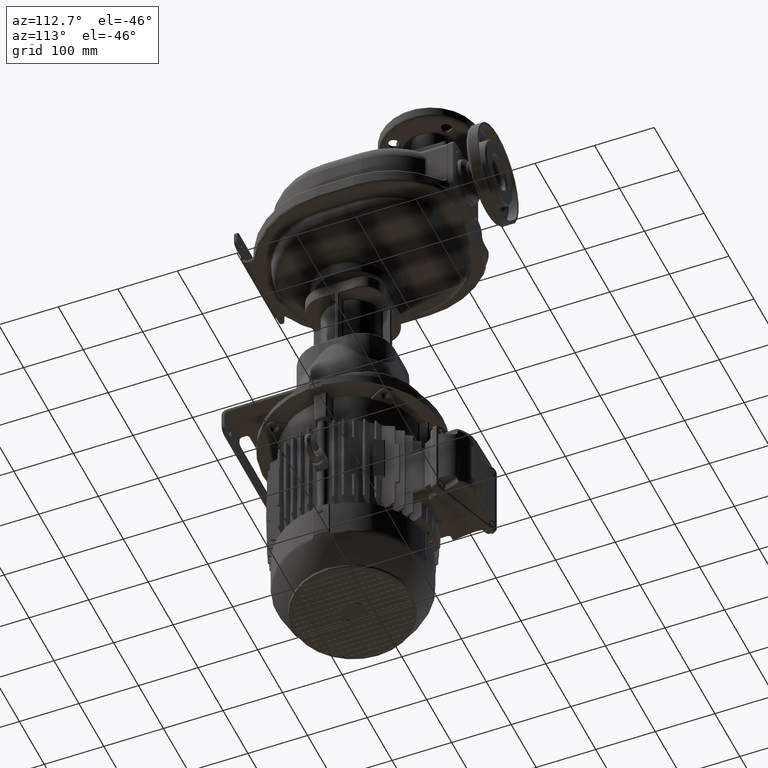
[diagram: clean part render]
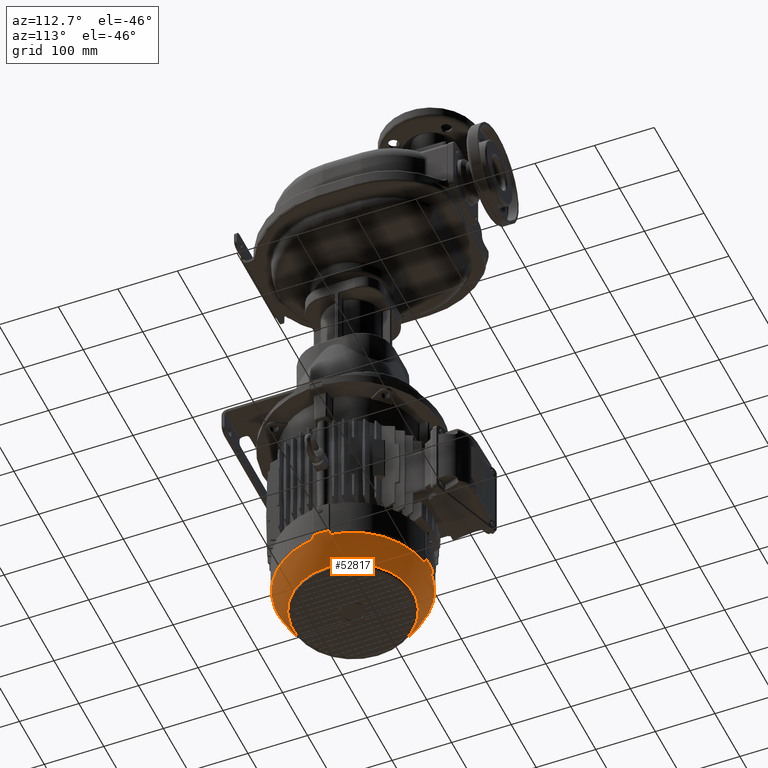
[diagram: same view with one face highlighted and labeled with its STEP entity id]
A machine part, auxiliary view. The second image highlights one B-rep face of the part: STEP entity #52817.
In plain terms, the highlighted spherical surface has radius 134.5 mm.
Its self-contained STEP definition (entity closure, byte-faithful):
#2063=CARTESIAN_POINT('',(1.488929890107E1,3.430784874219E1,-7.596978132399E2));
#2064=CARTESIAN_POINT('',(1.475744398687E1,3.414301324560E1,-7.592855881058E2));
#2065=CARTESIAN_POINT('',(1.451295154980E1,3.383627824537E1,-7.585040568826E2));
#2066=CARTESIAN_POINT('',(1.420577959763E1,3.344362143389E1,-7.574703323235E2));
#2067=CARTESIAN_POINT('',(1.395264247823E1,3.310607330589E1,-7.565533788171E2));
#2068=CARTESIAN_POINT('',(1.374870614997E1,3.281837287506E1,-7.557486281813E2));
#2069=CARTESIAN_POINT('',(1.358554285313E1,3.257041140621E1,-7.550358744280E2));
#2070=CARTESIAN_POINT('',(1.345342433632E1,3.235046135687E1,-7.543871514261E2));
#2071=CARTESIAN_POINT('',(1.334630162937E1,3.215116405452E1,-7.537845735321E2));
#2072=CARTESIAN_POINT('',(1.328896024811E1,3.202881445491E1,-7.534055431274E2));
#2073=CARTESIAN_POINT('',(1.326363396699E1,3.197039553464E1,-7.532224832490E2));
#2075=CARTESIAN_POINT('',(-2.912393634391E-14,1.6E2,-7.596978132152E2));
#2076=DIRECTION('',(0.E0,0.E0,-1.E0));
#2077=DIRECTION('',(9.930567840818E-1,-1.176359791440E-1,0.E0));
#2078=AXIS2_PLACEMENT_3D('',#2075,#2076,#2077);
#2080=CARTESIAN_POINT('',(1.280296044654E2,1.467363660330E2,-7.532224832490E2));
#2081=CARTESIAN_POINT('',(1.279814259862E2,1.467154792777E2,-7.533734539704E2));
#2082=CARTESIAN_POINT('',(1.278804561665E2,1.466687816741E2,-7.536868830440E2));
#2083=CARTESIAN_POINT('',(1.277159433322E2,1.465831072865E2,-7.541873143992E2));
#2084=CARTESIAN_POINT('',(1.275340395683E2,1.464783187419E2,-7.547291821856E2));
#2085=CARTESIAN_POINT('',(1.273289078842E2,1.463493974896E2,-7.553269317108E2));
#2086=CARTESIAN_POINT('',(1.270920268915E2,1.461888759900E2,-7.560010920150E2));
#2087=CARTESIAN_POINT('',(1.268166684840E2,1.459901996840E2,-7.567650147340E2));
#2088=CARTESIAN_POINT('',(1.264980841619E2,1.457490369051E2,-7.576251160253E2));
#2089=CARTESIAN_POINT('',(1.261299124284E2,1.454600614483E2,-7.585906456357E2));
#2090=CARTESIAN_POINT('',(1.258448223032E2,1.452328124912E2,-7.593160050594E2));
#2091=CARTESIAN_POINT('',(1.256921512578E2,1.451107010989E2,-7.596978132399E2));
#2093=CARTESIAN_POINT('',(-2.823160288411E-14,1.6E2,-7.524111169065E2));
#2094=DIRECTION('',(0.E0,0.E0,-1.E0));
#2095=DIRECTION('',(9.947688696105E-1,1.021513389720E-1,0.E0));
#2096=AXIS2_PLACEMENT_3D('',#2093,#2094,#2095);
#2098=CARTESIAN_POINT('',(1.256921512578E2,1.748892989011E2,-7.596978132399E2));
#2099=CARTESIAN_POINT('',(1.258448223029E2,1.747671875089E2,-7.593160050601E2));
#2100=CARTESIAN_POINT('',(1.261299124348E2,1.745399385469E2,-7.585906456189E2));
#2101=CARTESIAN_POINT('',(1.264980841584E2,1.742509630972E2,-7.576251160357E2));
#2102=CARTESIAN_POINT('',(1.268166685736E2,1.740098002482E2,-7.567650144918E2));
#2103=CARTESIAN_POINT('',(1.270920271019E2,1.738111238598E2,-7.560010914282E2));
#2104=CARTESIAN_POINT('',(1.273289082360E2,1.736506022791E2,-7.553269306993E2));
#2105=CARTESIAN_POINT('',(1.275340398416E2,1.735216810947E2,-7.547291813784E2));
#2106=CARTESIAN_POINT('',(1.277159434989E2,1.734168926232E2,-7.541873138958E2));
#2107=CARTESIAN_POINT('',(1.278804562363E2,1.733312182911E2,-7.536868828285E2));
#2108=CARTESIAN_POINT('',(1.279814260074E2,1.732845207133E2,-7.533734539039E2));
#2109=CARTESIAN_POINT('',(1.280296044654E2,1.732636339670E2,-7.532224832490E2));
#2111=CARTESIAN_POINT('',(-2.912393634391E-14,1.6E2,-7.596978132152E2));
#2112=DIRECTION('',(0.E0,0.E0,-1.E0));
#2113=DIRECTION('',(1.176359791440E-1,9.930567840818E-1,0.E0));
#2114=AXIS2_PLACEMENT_3D('',#2111,#2112,#2113);
#2116=CARTESIAN_POINT('',(1.326363396699E1,2.880296044654E2,-7.532224832490E2));
#2117=CARTESIAN_POINT('',(1.328896024201E1,2.879711855585E2,-7.534055430854E2));
#2118=CARTESIAN_POINT('',(1.334630160739E1,2.878488359941E2,-7.537845733820E2));
#2119=CARTESIAN_POINT('',(1.345342429007E1,2.876495387281E2,-7.543871511699E2));
#2120=CARTESIAN_POINT('',(1.358554270898E1,2.874295888267E2,-7.550358737463E2));
#2121=CARTESIAN_POINT('',(1.374870594658E1,2.871816274199E2,-7.557486273469E2));
#2122=CARTESIAN_POINT('',(1.395264235194E1,2.868939268641E2,-7.565533783521E2));
#2123=CARTESIAN_POINT('',(1.420577955146E1,2.865563786239E2,-7.574703321737E2));
#2124=CARTESIAN_POINT('',(1.451295163325E1,2.861637216498E2,-7.585040571556E2));
#2125=CARTESIAN_POINT('',(1.475744402723E1,2.858569867015E2,-7.592855882388E2));
#2126=CARTESIAN_POINT('',(1.488929890107E1,2.856921512578E2,-7.596978132399E2));
#2128=CARTESIAN_POINT('',(-2.823160288411E-14,1.6E2,-7.524111169065E2));
#2129=DIRECTION('',(0.E0,0.E0,1.E0));
#2130=DIRECTION('',(1.021513389720E-1,9.947688696105E-1,0.E0));
#2131=AXIS2_PLACEMENT_3D('',#2128,#2129,#2130);
#2133=CARTESIAN_POINT('',(-1.488929890107E1,2.856921512578E2,
-7.596978132399E2));
#2134=CARTESIAN_POINT('',(-1.475744398669E1,2.858569867545E2,
-7.592855881055E2));
#2135=CARTESIAN_POINT('',(-1.451295154937E1,2.861637217549E2,
-7.585040568820E2));
#2136=CARTESIAN_POINT('',(-1.420577959726E1,2.865563785665E2,
-7.574703323226E2));
#2137=CARTESIAN_POINT('',(-1.395264247797E1,2.868939266945E2,
-7.565533788161E2));
#2138=CARTESIAN_POINT('',(-1.374870614973E1,2.871816271254E2,
-7.557486281801E2));
#2139=CARTESIAN_POINT('',(-1.358554285288E1,2.874295885943E2,
-7.550358744266E2));
#2140=CARTESIAN_POINT('',(-1.345342433612E1,2.876495386435E2,
-7.543871514250E2));
#2141=CARTESIAN_POINT('',(-1.334630162928E1,2.878488359457E2,
-7.537845735314E2));
#2142=CARTESIAN_POINT('',(-1.328896024808E1,2.879711855452E2,
-7.534055431272E2));
#2143=CARTESIAN_POINT('',(-1.326363396699E1,2.880296044654E2,
-7.532224832490E2));
#2145=CARTESIAN_POINT('',(-2.912393634391E-14,1.6E2,-7.596978132152E2));
#2146=DIRECTION('',(0.E0,0.E0,-1.E0));
#2147=DIRECTION('',(-9.930567840818E-1,1.176359791440E-1,0.E0));
#2148=AXIS2_PLACEMENT_3D('',#2145,#2146,#2147);
#2150=CARTESIAN_POINT('',(-1.280296044654E2,1.732636339670E2,
-7.532224832490E2));
#2151=CARTESIAN_POINT('',(-1.279814259862E2,1.732845207223E2,
-7.533734539704E2));
#2152=CARTESIAN_POINT('',(-1.278804561665E2,1.733312183259E2,
-7.536868830440E2));
#2153=CARTESIAN_POINT('',(-1.277159433322E2,1.734168927135E2,
-7.541873143991E2));
#2154=CARTESIAN_POINT('',(-1.275340395683E2,1.735216812581E2,
-7.547291821856E2));
#2155=CARTESIAN_POINT('',(-1.273289078842E2,1.736506025104E2,
-7.553269317108E2));
#2156=CARTESIAN_POINT('',(-1.270920268915E2,1.738111240100E2,
-7.560010920150E2));
#2157=CARTESIAN_POINT('',(-1.268166684840E2,1.740098003160E2,
-7.567650147339E2));
#2158=CARTESIAN_POINT('',(-1.264980841620E2,1.742509630949E2,
-7.576251160253E2));
#2159=CARTESIAN_POINT('',(-1.261299124284E2,1.745399385517E2,
-7.585906456357E2));
#2160=CARTESIAN_POINT('',(-1.258448223032E2,1.747671875088E2,
-7.593160050594E2));
#2161=CARTESIAN_POINT('',(-1.256921512578E2,1.748892989011E2,
-7.596978132399E2));
#2163=CARTESIAN_POINT('',(-2.823160288411E-14,1.6E2,-7.524111169065E2));
#2164=DIRECTION('',(0.E0,0.E0,-1.E0));
#2165=DIRECTION('',(-9.947688696105E-1,-1.021513389720E-1,0.E0));
#2166=AXIS2_PLACEMENT_3D('',#2163,#2164,#2165);
#2168=CARTESIAN_POINT('',(-1.256921512578E2,1.451107010989E2,
-7.596978132399E2));
#2169=CARTESIAN_POINT('',(-1.258448223029E2,1.452328124912E2,
-7.593160050600E2));
#2170=CARTESIAN_POINT('',(-1.261299124349E2,1.454600614534E2,
-7.585906456186E2));
#2171=CARTESIAN_POINT('',(-1.264980841586E2,1.457490369030E2,
-7.576251160352E2));
#2172=CARTESIAN_POINT('',(-1.268166685737E2,1.459901997519E2,
-7.567650144914E2));
#2173=CARTESIAN_POINT('',(-1.270920271020E2,1.461888761403E2,
-7.560010914279E2));
#2174=CARTESIAN_POINT('',(-1.273289082361E2,1.463493977209E2,
-7.553269306989E2));
#2175=CARTESIAN_POINT('',(-1.275340398418E2,1.464783189054E2,
-7.547291813778E2));
#2176=CARTESIAN_POINT('',(-1.277159434990E2,1.465831073769E2,
-7.541873138953E2));
#2177=CARTESIAN_POINT('',(-1.278804562364E2,1.466687817089E2,
-7.536868828282E2));
#2178=CARTESIAN_POINT('',(-1.279814260075E2,1.467154792867E2,
-7.533734539038E2));
#2179=CARTESIAN_POINT('',(-1.280296044654E2,1.467363660330E2,
-7.532224832490E2));
#2181=CARTESIAN_POINT('',(-2.912393634391E-14,1.6E2,-7.596978132152E2));
#2182=DIRECTION('',(0.E0,0.E0,-1.E0));
#2183=DIRECTION('',(-1.176359791440E-1,-9.930567840818E-1,0.E0));
#2184=AXIS2_PLACEMENT_3D('',#2181,#2182,#2183);
#2186=CARTESIAN_POINT('',(-1.326363396699E1,3.197039553464E1,
-7.532224832490E2));
#2187=CARTESIAN_POINT('',(-1.328896024202E1,3.202881444149E1,
-7.534055430855E2));
#2188=CARTESIAN_POINT('',(-1.334630160742E1,3.215116400598E1,
-7.537845733822E2));
#2189=CARTESIAN_POINT('',(-1.345342429014E1,3.235046127200E1,
-7.543871511704E2));
#2190=CARTESIAN_POINT('',(-1.358554270907E1,3.257041117345E1,
-7.550358737468E2));
#2191=CARTESIAN_POINT('',(-1.374870594667E1,3.281837258026E1,
-7.557486273473E2));
#2192=CARTESIAN_POINT('',(-1.395264235203E1,3.310607313600E1,
-7.565533783525E2));
#2193=CARTESIAN_POINT('',(-1.420577955160E1,3.344362137626E1,
-7.574703321740E2));
#2194=CARTESIAN_POINT('',(-1.451295163341E1,3.383627835028E1,
-7.585040571558E2));
#2195=CARTESIAN_POINT('',(-1.475744402729E1,3.414301329857E1,
-7.592855882389E2));
#2196=CARTESIAN_POINT('',(-1.488929890107E1,3.430784874219E1,
-7.596978132399E2));
#2198=CARTESIAN_POINT('',(-3.439562241373E-14,1.6E2,-8.027458184241E2));
#2199=DIRECTION('',(0.E0,0.E0,-1.E0));
#2200=DIRECTION('',(-1.E0,0.E0,0.E0));
#2201=AXIS2_PLACEMENT_3D('',#2198,#2199,#2200);
#2203=CARTESIAN_POINT('',(-3.439562241373E-14,1.6E2,-8.027458184241E2));
#2204=DIRECTION('',(0.E0,0.E0,-1.E0));
#2205=DIRECTION('',(1.E0,0.E0,0.E0));
#2206=AXIS2_PLACEMENT_3D('',#2203,#2204,#2205);
#2208=CARTESIAN_POINT('',(-2.823160288411E-14,1.6E2,-7.524111169065E2));
#2209=DIRECTION('',(0.E0,0.E0,-1.E0));
#2210=DIRECTION('',(1.021513389720E-1,-9.947688696105E-1,0.E0));
#2211=AXIS2_PLACEMENT_3D('',#2208,#2209,#2210);
#2240=CARTESIAN_POINT('',(1.317323333080E1,3.171658676751E1,-7.524111169065E2));
#2587=CARTESIAN_POINT('',(-1.282834132325E2,1.468267666692E2,
-7.524111169065E2));
#2588=CARTESIAN_POINT('',(-1.282002467554E2,1.468032779781E2,
-7.526822287057E2));
#2589=CARTESIAN_POINT('',(-1.281156932223E2,1.467736879886E2,
-7.529527179535E2));
#2590=CARTESIAN_POINT('',(-1.280296044654E2,1.467363660330E2,
-7.532224832490E2));
#2602=CARTESIAN_POINT('',(-1.280296044654E2,1.467363660330E2,
-7.532224832490E2));
#2628=CARTESIAN_POINT('',(-1.488929890107E1,3.430784874219E1,
-7.596978132399E2));
#2646=CARTESIAN_POINT('',(-1.256921512578E2,1.451107010989E2,
-7.596978132399E2));
#2669=CARTESIAN_POINT('',(-1.326363396699E1,3.197039553464E1,
-7.532224832490E2));
#2670=CARTESIAN_POINT('',(-1.322631201143E1,3.188430677767E1,
-7.529527179535E2));
#2671=CARTESIAN_POINT('',(-1.319672202193E1,3.179975324463E1,
-7.526822287057E2));
#2672=CARTESIAN_POINT('',(-1.317323333080E1,3.171658676751E1,
-7.524111169065E2));
#2738=CARTESIAN_POINT('',(-1.282834132325E2,1.468267666692E2,
-7.524111169065E2));
#2756=CARTESIAN_POINT('',(-1.282834132325E2,1.731732333308E2,
-7.524111169065E2));
#2842=CARTESIAN_POINT('',(-1.280296044654E2,1.732636339670E2,
-7.532224832490E2));
#2843=CARTESIAN_POINT('',(-1.281156932223E2,1.732263120114E2,
-7.529527179535E2));
#2844=CARTESIAN_POINT('',(-1.282002467554E2,1.731967220219E2,
-7.526822287057E2));
#2845=CARTESIAN_POINT('',(-1.282834132325E2,1.731732333308E2,
-7.524111169065E2));
#2851=CARTESIAN_POINT('',(-1.280296044654E2,1.732636339670E2,
-7.532224832490E2));
#2887=CARTESIAN_POINT('',(-1.256921512578E2,1.748892989011E2,
-7.596978132399E2));
#2909=CARTESIAN_POINT('',(-1.488929890107E1,2.856921512578E2,
-7.596978132399E2));
#2920=CARTESIAN_POINT('',(-1.326363396699E1,2.880296044654E2,
-7.532224832490E2));
#2922=CARTESIAN_POINT('',(-1.317323333080E1,2.882834132325E2,
-7.524111169065E2));
#2923=CARTESIAN_POINT('',(-1.319672202193E1,2.882002467554E2,
-7.526822287057E2));
#2924=CARTESIAN_POINT('',(-1.322631201143E1,2.881156932223E2,
-7.529527179535E2));
#2925=CARTESIAN_POINT('',(-1.326363396699E1,2.880296044654E2,
-7.532224832490E2));
#2931=CARTESIAN_POINT('',(-1.317323333080E1,2.882834132325E2,
-7.524111169065E2));
#2989=CARTESIAN_POINT('',(1.317323333080E1,2.882834132325E2,-7.524111169065E2));
#3601=CARTESIAN_POINT('',(1.326363396699E1,2.880296044654E2,-7.532224832490E2));
#3602=CARTESIAN_POINT('',(1.322631201143E1,2.881156932223E2,-7.529527179535E2));
#3603=CARTESIAN_POINT('',(1.319672202193E1,2.882002467554E2,-7.526822287057E2));
#3604=CARTESIAN_POINT('',(1.317323333080E1,2.882834132325E2,-7.524111169065E2));
#3610=CARTESIAN_POINT('',(1.326363396699E1,2.880296044654E2,-7.532224832490E2));
#3617=CARTESIAN_POINT('',(1.488929890107E1,2.856921512578E2,-7.596978132399E2));
#3654=CARTESIAN_POINT('',(1.256921512578E2,1.748892989011E2,-7.596978132399E2));
#3677=CARTESIAN_POINT('',(1.282834132325E2,1.731732333308E2,-7.524111169065E2));
#3678=CARTESIAN_POINT('',(1.282002467554E2,1.731967220219E2,-7.526822287057E2));
#3679=CARTESIAN_POINT('',(1.281156932223E2,1.732263120114E2,-7.529527179535E2));
#3680=CARTESIAN_POINT('',(1.280296044654E2,1.732636339670E2,-7.532224832490E2));
#3738=CARTESIAN_POINT('',(1.282834132325E2,1.731732333308E2,-7.524111169065E2));
#3756=CARTESIAN_POINT('',(1.282834132325E2,1.468267666692E2,-7.524111169065E2));
#4355=CARTESIAN_POINT('',(1.280296044654E2,1.467363660330E2,-7.532224832490E2));
#4356=CARTESIAN_POINT('',(1.281156932223E2,1.467736879886E2,-7.529527179535E2));
#4357=CARTESIAN_POINT('',(1.282002467554E2,1.468032779781E2,-7.526822287057E2));
#4358=CARTESIAN_POINT('',(1.282834132325E2,1.468267666692E2,-7.524111169065E2));
#4390=CARTESIAN_POINT('',(1.256921512578E2,1.451107010989E2,-7.596978132399E2));
#4408=CARTESIAN_POINT('',(1.488929890107E1,3.430784874219E1,-7.596978132399E2));
#4431=CARTESIAN_POINT('',(1.317323333080E1,3.171658676751E1,-7.524111169065E2));
#4432=CARTESIAN_POINT('',(1.319672202193E1,3.179975324463E1,-7.526822287057E2));
#4433=CARTESIAN_POINT('',(1.322631201143E1,3.188430677767E1,-7.529527179535E2));
#4434=CARTESIAN_POINT('',(1.326363396699E1,3.197039553464E1,-7.532224832490E2));
#4446=CARTESIAN_POINT('',(1.326363396699E1,3.197039553464E1,-7.532224832490E2));
#45890=VERTEX_POINT('',#2669);
#45891=VERTEX_POINT('',#2672);
#47168=VERTEX_POINT('',#2920);
#47173=VERTEX_POINT('',#2909);
#47505=VERTEX_POINT('',#2931);
#47829=VERTEX_POINT('',#3617);
#47838=VERTEX_POINT('',#2989);
#47843=VERTEX_POINT('',#3610);
#48377=VERTEX_POINT('',#2628);
#48379=VERTEX_POINT('',#2756);
#48381=VERTEX_POINT('',#2738);
#48383=VERTEX_POINT('',#2240);
#48384=VERTEX_POINT('',#3738);
#48390=VERTEX_POINT('',#4408);
#48399=VERTEX_POINT('',#3756);
#48400=VERTEX_POINT('',#3654);
#48402=VERTEX_POINT('',#2851);
#48403=VERTEX_POINT('',#4390);
#48408=VERTEX_POINT('',#2887);
#48413=VERTEX_POINT('',#2646);
#48459=VERTEX_POINT('',#4446);
#48478=VERTEX_POINT('',#2602);
#48558=CARTESIAN_POINT('',(1.012418181818E2,1.6E2,-8.027458184241E2));
#48560=VERTEX_POINT('',#48558);
#48571=VERTEX_POINT('',#2080);
#48572=VERTEX_POINT('',#2109);
#48598=CARTESIAN_POINT('',(-1.012418181818E2,1.6E2,-8.027458184241E2));
#48599=VERTEX_POINT('',#48598);
#52758=CARTESIAN_POINT('',(-2.355225747514E-14,1.6E2,-7.142001E2));
#52759=DIRECTION('',(1.E0,0.E0,0.E0));
#52760=DIRECTION('',(0.E0,1.E0,0.E0));
#52761=AXIS2_PLACEMENT_3D('',#52758,#52759,#52760);
#52762=SPHERICAL_SURFACE('',#52761,1.345E2);
#52764=ORIENTED_EDGE('',*,*,#52763,.F.);
#52766=ORIENTED_EDGE('',*,*,#52765,.T.);
#52768=ORIENTED_EDGE('',*,*,#52767,.F.);
#52770=ORIENTED_EDGE('',*,*,#52769,.F.);
#52772=ORIENTED_EDGE('',*,*,#52771,.F.);
#52774=ORIENTED_EDGE('',*,*,#52773,.T.);
#52776=ORIENTED_EDGE('',*,*,#52775,.F.);
#52778=ORIENTED_EDGE('',*,*,#52777,.T.);
#52780=ORIENTED_EDGE('',*,*,#52779,.F.);
#52782=ORIENTED_EDGE('',*,*,#52781,.F.);
#52784=ORIENTED_EDGE('',*,*,#52783,.F.);
#52786=ORIENTED_EDGE('',*,*,#52785,.T.);
#52788=ORIENTED_EDGE('',*,*,#52787,.T.);
#52790=ORIENTED_EDGE('',*,*,#52789,.T.);
#52792=ORIENTED_EDGE('',*,*,#52791,.F.);
#52794=ORIENTED_EDGE('',*,*,#52793,.F.);
#52796=ORIENTED_EDGE('',*,*,#52795,.F.);
#52798=ORIENTED_EDGE('',*,*,#52797,.T.);
#52800=ORIENTED_EDGE('',*,*,#52799,.F.);
#52802=ORIENTED_EDGE('',*,*,#52801,.T.);
#52804=ORIENTED_EDGE('',*,*,#52803,.F.);
#52806=ORIENTED_EDGE('',*,*,#52805,.F.);
#52808=ORIENTED_EDGE('',*,*,#52807,.F.);
#52810=ORIENTED_EDGE('',*,*,#52809,.T.);
#52811=EDGE_LOOP('',(#52764,#52766,#52768,#52770,#52772,#52774,#52776,#52778,
#52780,#52782,#52784,#52786,#52788,#52790,#52792,#52794,#52796,#52798,#52800,
#52802,#52804,#52806,#52808,#52810));
#52812=FACE_OUTER_BOUND('',#52811,.F.);
#52813=ORIENTED_EDGE('',*,*,#52739,.T.);
#52814=ORIENTED_EDGE('',*,*,#52749,.T.);
#52815=EDGE_LOOP('',(#52813,#52814));
#52816=FACE_BOUND('',#52815,.F.);
#52817=ADVANCED_FACE('',(#52812,#52816),#52762,.T.);
#2074=B_SPLINE_CURVE_WITH_KNOTS('',3,(#2063,#2064,#2065,#2066,#2067,#2068,#2069,
#2070,#2071,#2072,#2073),.UNSPECIFIED.,.F.,.F.,(4,1,1,1,1,1,1,1,4),(0.E0,
1.25E-1,2.5E-1,3.75E-1,5.E-1,6.25E-1,7.5E-1,8.75E-1,1.E0),.UNSPECIFIED.);
#2079=CIRCLE('',#2078,1.265709606987E2);
#2092=B_SPLINE_CURVE_WITH_KNOTS('',3,(#2080,#2081,#2082,#2083,#2084,#2085,#2086,
#2087,#2088,#2089,#2090,#2091),.UNSPECIFIED.,.F.,.F.,(4,1,1,1,1,1,1,1,1,4),
(0.E0,1.111111111111E-1,2.222222222222E-1,3.333333333333E-1,4.444444444444E-1,
5.555555555556E-1,6.666666666667E-1,7.777777777778E-1,8.888888888889E-1,1.E0),
.UNSPECIFIED.);
#2097=CIRCLE('',#2096,1.289580093944E2);
#2110=B_SPLINE_CURVE_WITH_KNOTS('',3,(#2098,#2099,#2100,#2101,#2102,#2103,#2104,
#2105,#2106,#2107,#2108,#2109),.UNSPECIFIED.,.F.,.F.,(4,1,1,1,1,1,1,1,1,4),
(0.E0,1.111111111111E-1,2.222222222222E-1,3.333333333333E-1,4.444444444444E-1,
5.555555555556E-1,6.666666666667E-1,7.777777777778E-1,8.888888888889E-1,1.E0),
.UNSPECIFIED.);
#2115=CIRCLE('',#2114,1.265709606987E2);
#2127=B_SPLINE_CURVE_WITH_KNOTS('',3,(#2116,#2117,#2118,#2119,#2120,#2121,#2122,
#2123,#2124,#2125,#2126),.UNSPECIFIED.,.F.,.F.,(4,1,1,1,1,1,1,1,4),(0.E0,
1.25E-1,2.5E-1,3.75E-1,5.E-1,6.25E-1,7.5E-1,8.75E-1,1.E0),.UNSPECIFIED.);
#2132=CIRCLE('',#2131,1.289580093944E2);
#2144=B_SPLINE_CURVE_WITH_KNOTS('',3,(#2133,#2134,#2135,#2136,#2137,#2138,#2139,
#2140,#2141,#2142,#2143),.UNSPECIFIED.,.F.,.F.,(4,1,1,1,1,1,1,1,4),(0.E0,
1.25E-1,2.5E-1,3.75E-1,5.E-1,6.25E-1,7.5E-1,8.75E-1,1.E0),.UNSPECIFIED.);
#2149=CIRCLE('',#2148,1.265709606987E2);
#2162=B_SPLINE_CURVE_WITH_KNOTS('',3,(#2150,#2151,#2152,#2153,#2154,#2155,#2156,
#2157,#2158,#2159,#2160,#2161),.UNSPECIFIED.,.F.,.F.,(4,1,1,1,1,1,1,1,1,4),
(0.E0,1.111111111111E-1,2.222222222222E-1,3.333333333333E-1,4.444444444444E-1,
5.555555555556E-1,6.666666666667E-1,7.777777777778E-1,8.888888888889E-1,1.E0),
.UNSPECIFIED.);
#2167=CIRCLE('',#2166,1.289580093944E2);
#2180=B_SPLINE_CURVE_WITH_KNOTS('',3,(#2168,#2169,#2170,#2171,#2172,#2173,#2174,
#2175,#2176,#2177,#2178,#2179),.UNSPECIFIED.,.F.,.F.,(4,1,1,1,1,1,1,1,1,4),
(0.E0,1.111111111111E-1,2.222222222222E-1,3.333333333333E-1,4.444444444444E-1,
5.555555555556E-1,6.666666666667E-1,7.777777777778E-1,8.888888888889E-1,1.E0),
.UNSPECIFIED.);
#2185=CIRCLE('',#2184,1.265709606987E2);
#2197=B_SPLINE_CURVE_WITH_KNOTS('',3,(#2186,#2187,#2188,#2189,#2190,#2191,#2192,
#2193,#2194,#2195,#2196),.UNSPECIFIED.,.F.,.F.,(4,1,1,1,1,1,1,1,4),(0.E0,
1.25E-1,2.5E-1,3.75E-1,5.E-1,6.25E-1,7.5E-1,8.75E-1,1.E0),.UNSPECIFIED.);
#2202=CIRCLE('',#2201,1.012418181818E2);
#2207=CIRCLE('',#2206,1.012418181818E2);
#2212=CIRCLE('',#2211,1.289580093944E2);
#2591=B_SPLINE_CURVE_WITH_KNOTS('',3,(#2587,#2588,#2589,#2590),.UNSPECIFIED.,
.F.,.F.,(4,4),(0.E0,1.E0),.UNSPECIFIED.);
#2673=B_SPLINE_CURVE_WITH_KNOTS('',3,(#2669,#2670,#2671,#2672),.UNSPECIFIED.,
.F.,.F.,(4,4),(0.E0,1.E0),.UNSPECIFIED.);
#2846=B_SPLINE_CURVE_WITH_KNOTS('',3,(#2842,#2843,#2844,#2845),.UNSPECIFIED.,
.F.,.F.,(4,4),(0.E0,1.E0),.UNSPECIFIED.);
#2926=B_SPLINE_CURVE_WITH_KNOTS('',3,(#2922,#2923,#2924,#2925),.UNSPECIFIED.,
.F.,.F.,(4,4),(0.E0,1.E0),.UNSPECIFIED.);
#3605=B_SPLINE_CURVE_WITH_KNOTS('',3,(#3601,#3602,#3603,#3604),.UNSPECIFIED.,
.F.,.F.,(4,4),(0.E0,1.E0),.UNSPECIFIED.);
#3681=B_SPLINE_CURVE_WITH_KNOTS('',3,(#3677,#3678,#3679,#3680),.UNSPECIFIED.,
.F.,.F.,(4,4),(0.E0,1.E0),.UNSPECIFIED.);
#4359=B_SPLINE_CURVE_WITH_KNOTS('',3,(#4355,#4356,#4357,#4358),.UNSPECIFIED.,
.F.,.F.,(4,4),(0.E0,1.E0),.UNSPECIFIED.);
#4435=B_SPLINE_CURVE_WITH_KNOTS('',3,(#4431,#4432,#4433,#4434),.UNSPECIFIED.,
.F.,.F.,(4,4),(0.E0,1.E0),.UNSPECIFIED.);
#52739=EDGE_CURVE('',#48599,#48560,#2202,.T.);
#52749=EDGE_CURVE('',#48560,#48599,#2207,.T.);
#52763=EDGE_CURVE('',#48383,#45891,#2212,.T.);
#52765=EDGE_CURVE('',#48383,#48459,#4435,.T.);
#52767=EDGE_CURVE('',#48390,#48459,#2074,.T.);
#52769=EDGE_CURVE('',#48403,#48390,#2079,.T.);
#52771=EDGE_CURVE('',#48571,#48403,#2092,.T.);
#52773=EDGE_CURVE('',#48571,#48399,#4359,.T.);
#52775=EDGE_CURVE('',#48384,#48399,#2097,.T.);
#52777=EDGE_CURVE('',#48384,#48572,#3681,.T.);
#52779=EDGE_CURVE('',#48400,#48572,#2110,.T.);
#52781=EDGE_CURVE('',#47829,#48400,#2115,.T.);
#52783=EDGE_CURVE('',#47843,#47829,#2127,.T.);
#52785=EDGE_CURVE('',#47843,#47838,#3605,.T.);
#52787=EDGE_CURVE('',#47838,#47505,#2132,.T.);
#52789=EDGE_CURVE('',#47505,#47168,#2926,.T.);
#52791=EDGE_CURVE('',#47173,#47168,#2144,.T.);
#52793=EDGE_CURVE('',#48408,#47173,#2149,.T.);
#52795=EDGE_CURVE('',#48402,#48408,#2162,.T.);
#52797=EDGE_CURVE('',#48402,#48379,#2846,.T.);
#52799=EDGE_CURVE('',#48381,#48379,#2167,.T.);
#52801=EDGE_CURVE('',#48381,#48478,#2591,.T.);
#52803=EDGE_CURVE('',#48413,#48478,#2180,.T.);
#52805=EDGE_CURVE('',#48377,#48413,#2185,.T.);
#52807=EDGE_CURVE('',#45890,#48377,#2197,.T.);
#52809=EDGE_CURVE('',#45890,#45891,#2673,.T.);